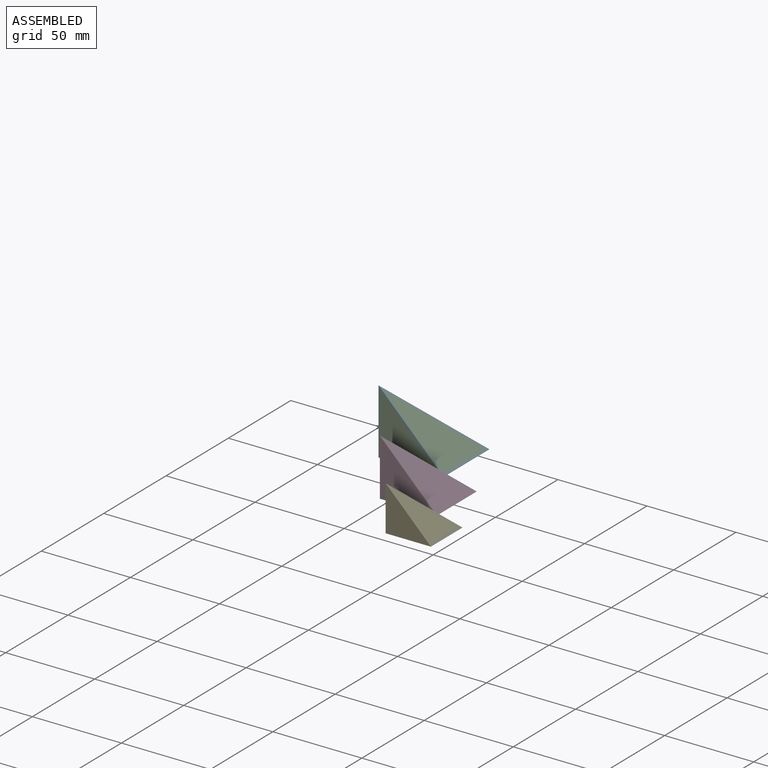
[diagram: assembled view]
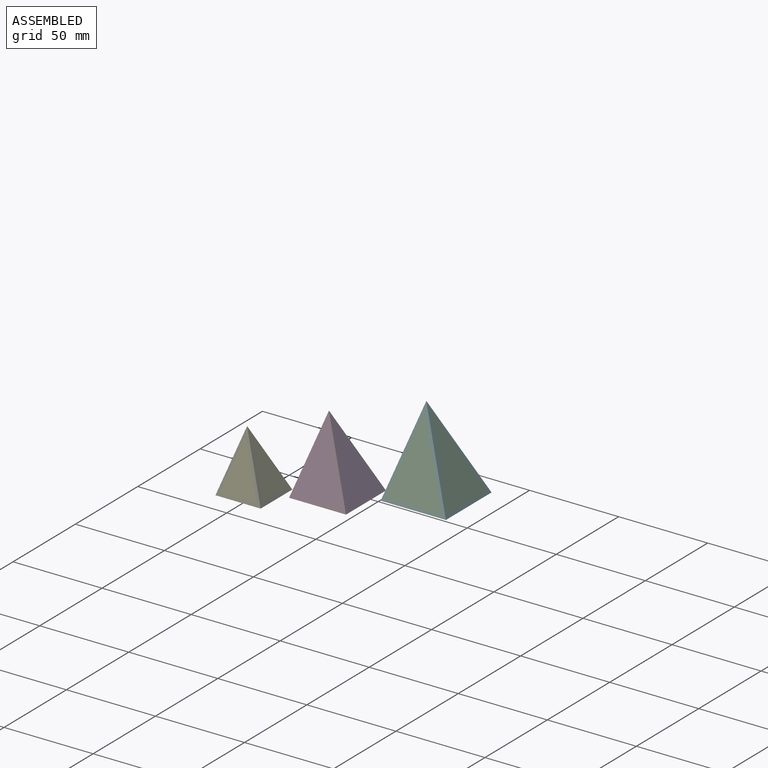
[diagram: assembled view, second angle]
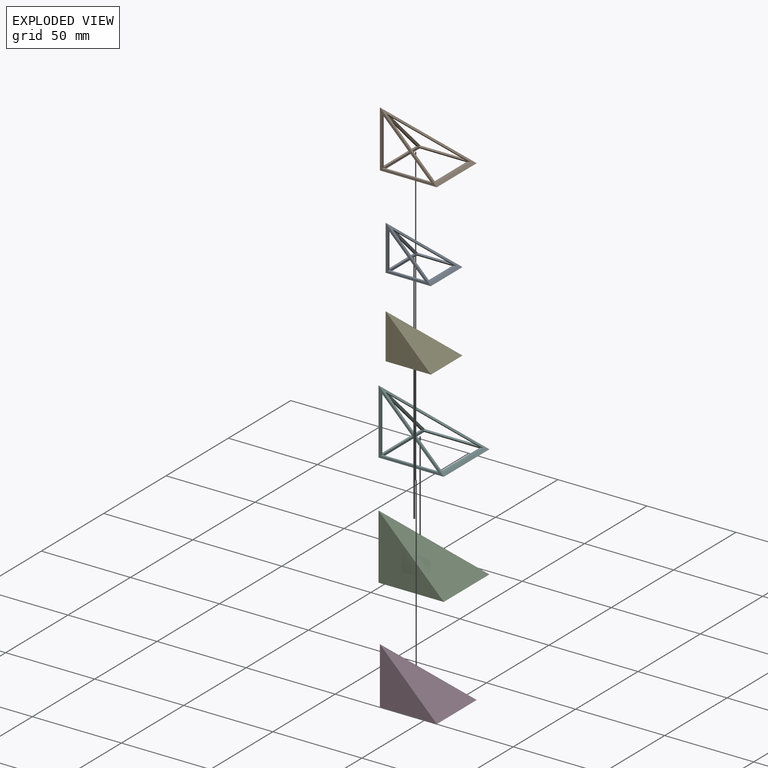
[diagram: exploded view]
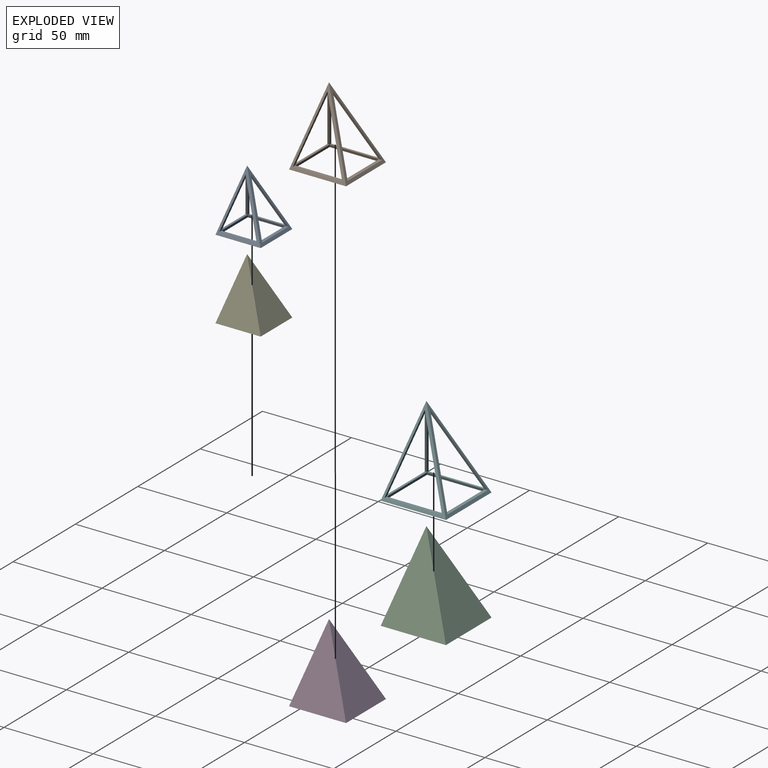
[diagram: exploded view, second angle]
ASSEMBLY  parts=6 mates=3
PART A: 21 faces, bbox 25.4x25.4x25.4 mm
  f0: plane 21.06x21.06mm, normal (-0.71,0,-0.71), area 37.8mm2, adj f2,f4,f14,f18
  f1: plane 22.86x21.06mm, normal (-0.71,0,-0.71), area 53.5mm2, adj f3,f5,f13,f19
  f2: plane 21.06x1.27mm, normal (1,0,0), area 26.8mm2, adj f0,f4,f14,f17
  f3: plane 22.86x21.06mm, normal (1,0,0), area 37.8mm2, adj f1,f5,f13,f16
  f4: plane 25.4x25.4mm, normal (0,-1,0), area 100.7mm2, adj f0,f2,f8,f9,f10,f14
  f5: plane 25.4x25.4mm, normal (0,0.71,0.71), area 142.5mm2, adj f1,f3,f8,f9,f10,f13
  f6: plane 22.33x1.27mm, normal (0,1,0), area 27.6mm2, adj f8,f11,f12,f14
  f7: plane 22.33x1.27mm, normal (0,-0.71,-0.71), area 39mm2, adj f8,f11,f12,f13
  f8: plane 25.4x25.4mm, normal (0,0,-1), area 146.4mm2, adj f4,f5,f6,f7,f9,f10,f11,f12
  f9: plane 25.4x25.4mm, normal (0.71,0,0.71), area 142.5mm2, adj f4,f5,f8,f18,f19,f20
  f10: plane 25.4x25.4mm, normal (-1,0,0), area 100.7mm2, adj f4,f5,f8,f15,f16,f17
  f11: plane 22.33x1.27mm, normal (-0.71,0,-0.71), area 39mm2, adj f6,f7,f8,f20
  f12: plane 22.33x1.27mm, normal (1,0,0), area 27.6mm2, adj f6,f7,f8,f15
  f13: plane 21.06x1.8mm, normal (0,0,1), area 37.8mm2, adj f1,f3,f5,f7
  f14: plane 21.06x1.27mm, normal (0,0,1), area 26.8mm2, adj f0,f2,f4,f6
  f15: plane 21.06x1.27mm, normal (0,0,1), area 26.8mm2, adj f10,f12,f16,f17
  f16: plane 21.06x21.06mm, normal (0,-0.71,-0.71), area 37.8mm2, adj f3,f10,f15,f17
  f17: plane 21.06x1.27mm, normal (0,1,0), area 26.8mm2, adj f2,f10,f15,f16
  f18: plane 22.86x21.06mm, normal (0,1,0), area 37.8mm2, adj f0,f9,f19,f20
  f19: plane 22.86x21.06mm, normal (0,-0.71,-0.71), area 53.5mm2, adj f1,f9,f18,f20
  f20: plane 21.06x1.8mm, normal (0,0,1), area 37.8mm2, adj f9,f11,f18,f19
PART B: 21 faces, bbox 32x32x32 mm
  f0: plane 27.67x27.67mm, normal (-0.71,0,-0.71), area 49.7mm2, adj f2,f4,f14,f18
  f1: plane 29.46x27.67mm, normal (-0.71,0,-0.71), area 70.3mm2, adj f3,f5,f13,f19
  f2: plane 27.67x1.27mm, normal (1,0,0), area 35.1mm2, adj f0,f4,f14,f17
  f3: plane 29.46x27.67mm, normal (1,0,0), area 49.7mm2, adj f1,f5,f13,f16
  f4: plane 32x32mm, normal (0,-1,0), area 129.4mm2, adj f0,f2,f8,f9,f10,f14
  f5: plane 32x32mm, normal (0,0.71,0.71), area 182.9mm2, adj f1,f3,f8,f9,f10,f13
  f6: plane 28.94x1.27mm, normal (0,1,0), area 35.9mm2, adj f8,f11,f12,f14
  f7: plane 28.94x1.27mm, normal (0,-0.71,-0.71), area 50.8mm2, adj f8,f11,f12,f13
  f8: plane 32x32mm, normal (0,0,-1), area 186.8mm2, adj f4,f5,f6,f7,f9,f10,f11,f12
  f9: plane 32x32mm, normal (0.71,0,0.71), area 182.9mm2, adj f4,f5,f8,f18,f19,f20
  f10: plane 32x32mm, normal (-1,0,0), area 129.4mm2, adj f4,f5,f8,f15,f16,f17
  f11: plane 28.94x1.27mm, normal (-0.71,0,-0.71), area 50.8mm2, adj f6,f7,f8,f20
  f12: plane 28.94x1.27mm, normal (1,0,0), area 35.9mm2, adj f6,f7,f8,f15
  f13: plane 27.67x1.8mm, normal (0,0,1), area 49.7mm2, adj f1,f3,f5,f7
  f14: plane 27.67x1.27mm, normal (0,0,1), area 35.1mm2, adj f0,f2,f4,f6
  f15: plane 27.67x1.27mm, normal (0,0,1), area 35.1mm2, adj f10,f12,f16,f17
  f16: plane 27.67x27.67mm, normal (0,-0.71,-0.71), area 49.7mm2, adj f3,f10,f15,f17
  f17: plane 27.67x1.27mm, normal (0,1,0), area 35.1mm2, adj f2,f10,f15,f16
  f18: plane 29.46x27.67mm, normal (0,1,0), area 49.7mm2, adj f0,f9,f19,f20
  f19: plane 29.46x27.67mm, normal (0,-0.71,-0.71), area 70.3mm2, adj f1,f9,f18,f20
  f20: plane 27.67x1.8mm, normal (0,0,1), area 49.7mm2, adj f9,f11,f18,f19
PART C: 5 faces, bbox 36.6x36.6x36.6 mm
  f0: plane 36.63x36.63mm, normal (0,1,0), area 671mm2, adj f1,f2,f3
  f1: plane 36.63x36.63mm, normal (1,0,0), area 671mm2, adj f0,f2,f4
  f2: plane 36.63x36.63mm, normal (0,0,1), area 1342mm2, adj f0,f1,f3,f4
  f3: plane 36.63x36.63mm, normal (-0.71,0,-0.71), area 948.9mm2, adj f0,f2,f4
  f4: plane 36.63x36.63mm, normal (0,-0.71,-0.71), area 948.9mm2, adj f1,f2,f3
PART D: 5 faces, bbox 32x32x32 mm
  f0: plane 32x32mm, normal (0,1,0), area 512.1mm2, adj f1,f2,f3
  f1: plane 32x32mm, normal (1,0,0), area 512.1mm2, adj f0,f2,f4
  f2: plane 32x32mm, normal (0,0,1), area 1024.1mm2, adj f0,f1,f3,f4
  f3: plane 32x32mm, normal (-0.71,0,-0.71), area 724.2mm2, adj f0,f2,f4
  f4: plane 32x32mm, normal (0,-0.71,-0.71), area 724.2mm2, adj f1,f2,f3
PART E: 5 faces, bbox 25.4x25.4x25.4 mm
  f0: plane 25.4x25.4mm, normal (0,1,0), area 322.6mm2, adj f1,f2,f3
  f1: plane 25.4x25.4mm, normal (1,0,0), area 322.6mm2, adj f0,f2,f4
  f2: plane 25.4x25.4mm, normal (0,0,1), area 645.2mm2, adj f0,f1,f3,f4
  f3: plane 25.4x25.4mm, normal (-0.71,0,-0.71), area 456.2mm2, adj f0,f2,f4
  f4: plane 25.4x25.4mm, normal (0,-0.71,-0.71), area 456.2mm2, adj f1,f2,f3
PART F: 21 faces, bbox 36.6x36.6x36.6 mm
  f0: plane 32.3x32.3mm, normal (-0.71,0,-0.71), area 58mm2, adj f2,f4,f14,f18
  f1: plane 34.09x32.3mm, normal (-0.71,0,-0.71), area 82mm2, adj f3,f5,f13,f19
  f2: plane 32.3x1.27mm, normal (1,0,0), area 41mm2, adj f0,f4,f14,f17
  f3: plane 34.09x32.3mm, normal (1,0,0), area 58mm2, adj f1,f5,f13,f16
  f4: plane 36.63x36.63mm, normal (0,-1,0), area 149.4mm2, adj f0,f2,f8,f9,f10,f14
  f5: plane 36.63x36.63mm, normal (0,0.71,0.71), area 211.3mm2, adj f1,f3,f8,f9,f10,f13
  f6: plane 33.57x1.27mm, normal (0,1,0), area 41.8mm2, adj f8,f11,f12,f14
  f7: plane 33.57x1.27mm, normal (0,-0.71,-0.71), area 59.1mm2, adj f8,f11,f12,f13
  f8: plane 36.63x36.63mm, normal (0,0,-1), area 215.2mm2, adj f4,f5,f6,f7,f9,f10,f11,f12
  f9: plane 36.63x36.63mm, normal (0.71,0,0.71), area 211.3mm2, adj f4,f5,f8,f18,f19,f20
  f10: plane 36.63x36.63mm, normal (-1,0,0), area 149.4mm2, adj f4,f5,f8,f15,f16,f17
  f11: plane 33.57x1.27mm, normal (-0.71,0,-0.71), area 59.1mm2, adj f6,f7,f8,f20
  f12: plane 33.57x1.27mm, normal (1,0,0), area 41.8mm2, adj f6,f7,f8,f15
  f13: plane 32.3x1.8mm, normal (0,0,1), area 58mm2, adj f1,f3,f5,f7
  f14: plane 32.3x1.27mm, normal (0,0,1), area 41mm2, adj f0,f2,f4,f6
  f15: plane 32.3x1.27mm, normal (0,0,1), area 41mm2, adj f10,f12,f16,f17
  f16: plane 32.3x32.3mm, normal (0,-0.71,-0.71), area 58mm2, adj f3,f10,f15,f17
  f17: plane 32.3x1.27mm, normal (0,1,0), area 41mm2, adj f2,f10,f15,f16
  f18: plane 34.09x32.3mm, normal (0,1,0), area 58mm2, adj f0,f9,f19,f20
  f19: plane 34.09x32.3mm, normal (0,-0.71,-0.71), area 82mm2, adj f1,f9,f18,f20
  f20: plane 32.3x1.8mm, normal (0,0,1), area 58mm2, adj f9,f11,f18,f19
PLACE A t=(13.95,-19.96,23.42)mm fixed
PLACE B t=(-6.54,12.64,23.42)mm fixed
PLACE C rot(axis=(0.71,-0.71,0),180deg) t=(-12.09,69.62,60.05)mm
PLACE D rot(axis=(0.71,-0.71,0),180deg) t=(9.46,28.64,55.42)mm
PLACE E rot(axis=(0.71,-0.71,0),180deg) t=(26.65,-7.26,48.82)mm
PLACE F t=(-30.41,51.3,23.42)mm fixed
MATE fastened C.f2 <-> F.f8  axis (0,0,-1) through (-48.73,32.99,23.42)mm
MATE fastened B.f8 <-> D.f2  axis (0,0,1) through (-22.54,-3.36,23.42)mm
MATE fastened E.f2 <-> A.f8  axis (0,0,-1) through (1.25,-32.66,23.42)mm
